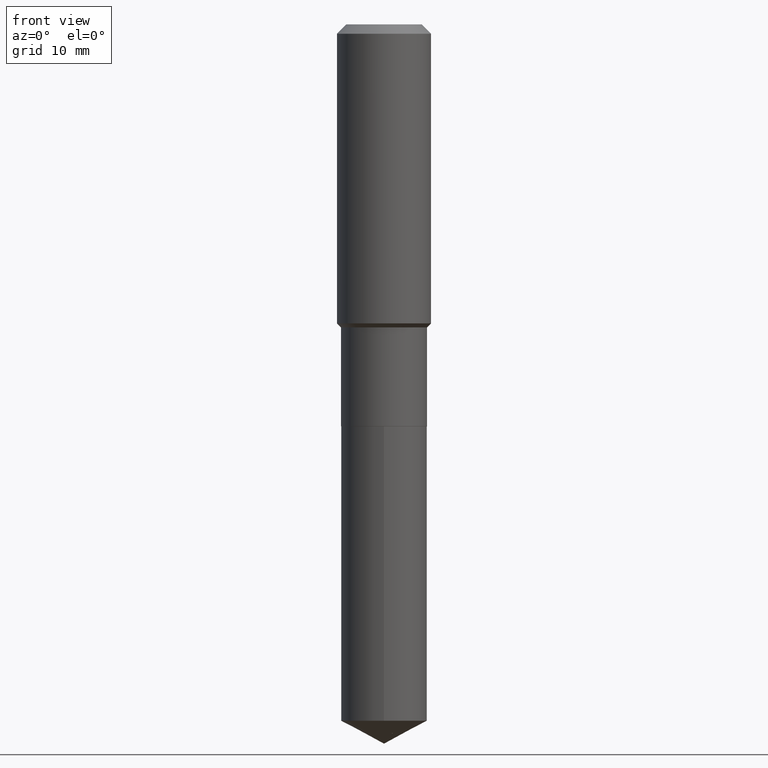
[diagram: clean part render]
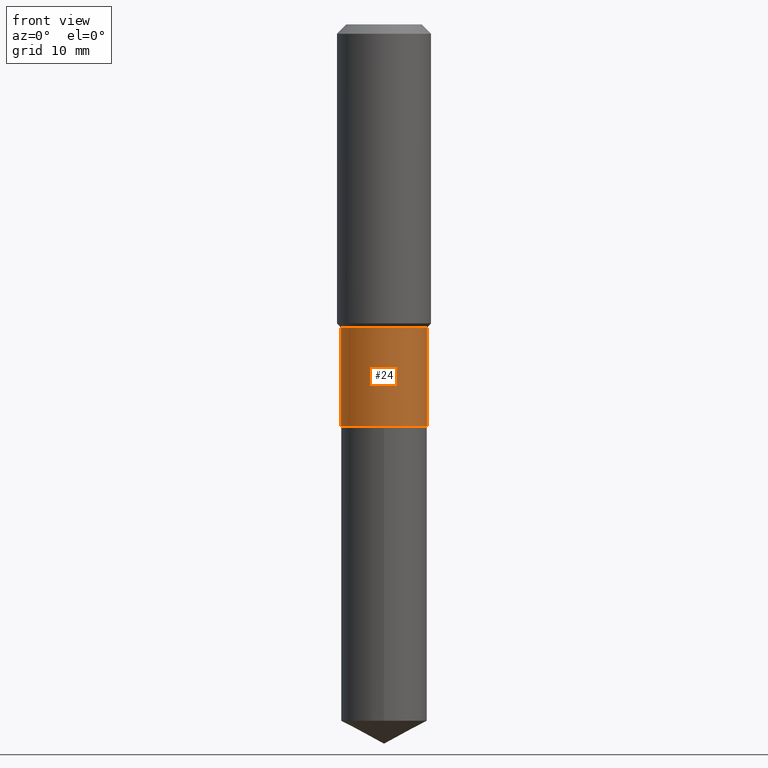
[diagram: same view with one face highlighted and labeled with its STEP entity id]
A machine part, front view. The second image highlights one B-rep face of the part: STEP entity #24.
In plain terms, the highlighted cylindrical surface (partial cylindrical patch) has radius 6.3995 mm, axis along (-0, 0, 1).
Its self-contained STEP definition (entity closure, byte-faithful):
#2 = CARTESIAN_POINT ( 'NONE',  ( 0.2519499999999999518, -1.759357446643054800E-15, 1.228552738661785732E-29 ) ) ;
#10 = ORIENTED_EDGE ( 'NONE', *, *, #380, .T. ) ;
#24 = ADVANCED_FACE ( 'NONE', ( #475 ), #137, .T. ) ;
#41 = DIRECTION ( 'NONE',  ( -2.445468806185136877E-29, 3.491481338843145188E-15, 1.000000000000000000 ) ) ;
#46 = LINE ( 'NONE', #198, #275 ) ;
#52 = VECTOR ( 'NONE', #73, 39.37007874015748143 ) ;
#53 = VERTEX_POINT ( 'NONE', #70 ) ;
#70 = CARTESIAN_POINT ( 'NONE',  ( -0.2519499999999999518, -5.417252505026335098E-15, -1.774800000000000155 ) ) ;
#73 = DIRECTION ( 'NONE',  ( -2.445468806185136877E-29, 3.491481338843145188E-15, 1.000000000000000000 ) ) ;
#75 = CARTESIAN_POINT ( 'NONE',  ( 0.2519499999999999518, -7.956038526821870387E-15, -1.774800000000000155 ) ) ;
#78 = CARTESIAN_POINT ( 'NONE',  ( 0.2519500000000000073, -9.977606222012053561E-15, -2.353800000000000558 ) ) ;
#98 = DIRECTION ( 'NONE',  ( 1.000000000000000000, -6.982962677686267499E-15, 4.876176775795935793E-29 ) ) ;
#115 = DIRECTION ( 'NONE',  ( -2.445468806185136597E-29, 3.491481338843145583E-15, 1.000000000000000000 ) ) ;
#117 = CARTESIAN_POINT ( 'NONE',  ( 4.340218037217380899E-29, -6.196681080178815981E-15, -1.774800000000000155 ) ) ;
#133 = DIRECTION ( 'NONE',  ( 1.000000000000000000, -6.982962677686267499E-15, 0.000000000000000000 ) ) ;
#137 = CYLINDRICAL_SURFACE ( 'NONE', #153, 0.2519499999999999518 ) ;
#153 = AXIS2_PLACEMENT_3D ( 'NONE', #439, #367, #98 ) ;
#155 = AXIS2_PLACEMENT_3D ( 'NONE', #117, #115, #133 ) ;
#166 = CARTESIAN_POINT ( 'NONE',  ( 5.756144475998575397E-29, -8.218248775368998366E-15, -2.353800000000000558 ) ) ;
#175 = CIRCLE ( 'NONE', #483, 0.2519500000000000073 ) ;
#192 = VERTEX_POINT ( 'NONE', #78 ) ;
#198 = CARTESIAN_POINT ( 'NONE',  ( -0.2519499999999999518, 1.790212422747572076E-15, -1.239325695989723260E-29 ) ) ;
#202 = CARTESIAN_POINT ( 'NONE',  ( -0.2519500000000000073, -5.417252505026335098E-15, -2.353800000000000558 ) ) ;
#210 = DIRECTION ( 'NONE',  ( 1.000000000000000000, -6.982962677686269077E-15, 0.000000000000000000 ) ) ;
#225 = EDGE_LOOP ( 'NONE', ( #442, #10, #291, #348 ) ) ;
#262 = EDGE_CURVE ( 'NONE', #490, #53, #46, .T. ) ;
#275 = VECTOR ( 'NONE', #41, 39.37007874015748143 ) ;
#291 = ORIENTED_EDGE ( 'NONE', *, *, #468, .T. ) ;
#321 = CIRCLE ( 'NONE', #155, 0.2519499999999999518 ) ;
#324 = VERTEX_POINT ( 'NONE', #75 ) ;
#348 = ORIENTED_EDGE ( 'NONE', *, *, #485, .F. ) ;
#367 = DIRECTION ( 'NONE',  ( -2.445468806185136597E-29, 3.491481338843145583E-15, 1.000000000000000000 ) ) ;
#380 = EDGE_CURVE ( 'NONE', #490, #192, #175, .T. ) ;
#417 = LINE ( 'NONE', #2, #52 ) ;
#425 = DIRECTION ( 'NONE',  ( -2.445468806185136597E-29, 3.491481338843145583E-15, 1.000000000000000000 ) ) ;
#439 = CARTESIAN_POINT ( 'NONE',  ( 0.000000000000000000, 0.000000000000000000, 0.000000000000000000 ) ) ;
#442 = ORIENTED_EDGE ( 'NONE', *, *, #262, .F. ) ;
#468 = EDGE_CURVE ( 'NONE', #192, #324, #417, .T. ) ;
#475 = FACE_OUTER_BOUND ( 'NONE', #225, .T. ) ;
#483 = AXIS2_PLACEMENT_3D ( 'NONE', #166, #425, #210 ) ;
#485 = EDGE_CURVE ( 'NONE', #53, #324, #321, .T. ) ;
#490 = VERTEX_POINT ( 'NONE', #202 ) ;